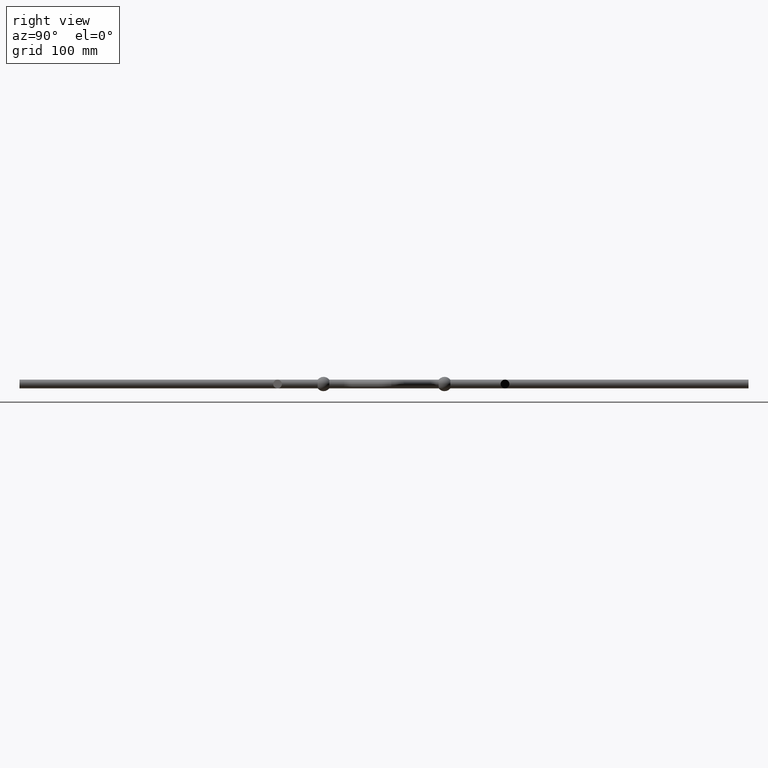
[diagram: clean part render]
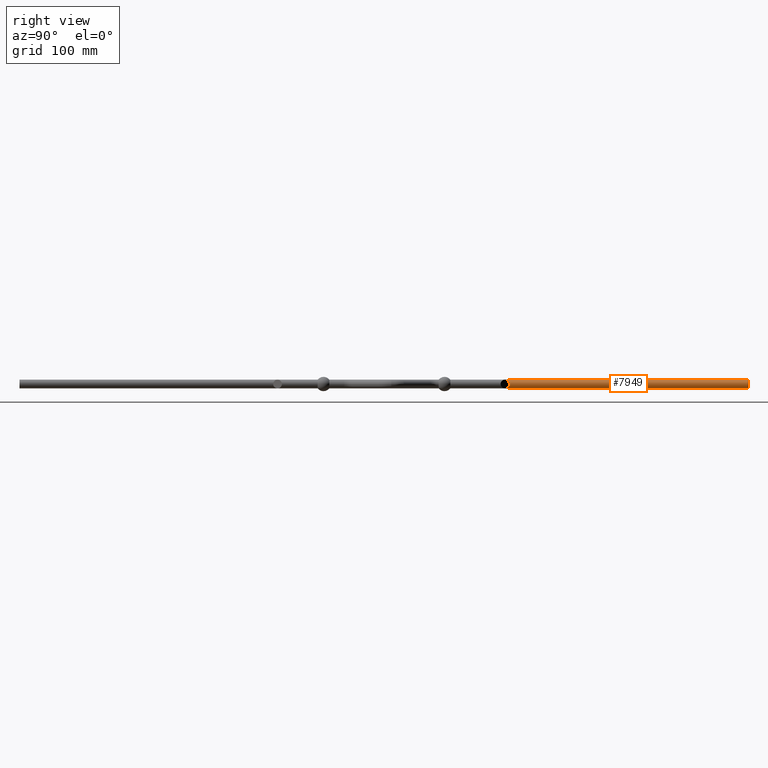
[diagram: same view with one face highlighted and labeled with its STEP entity id]
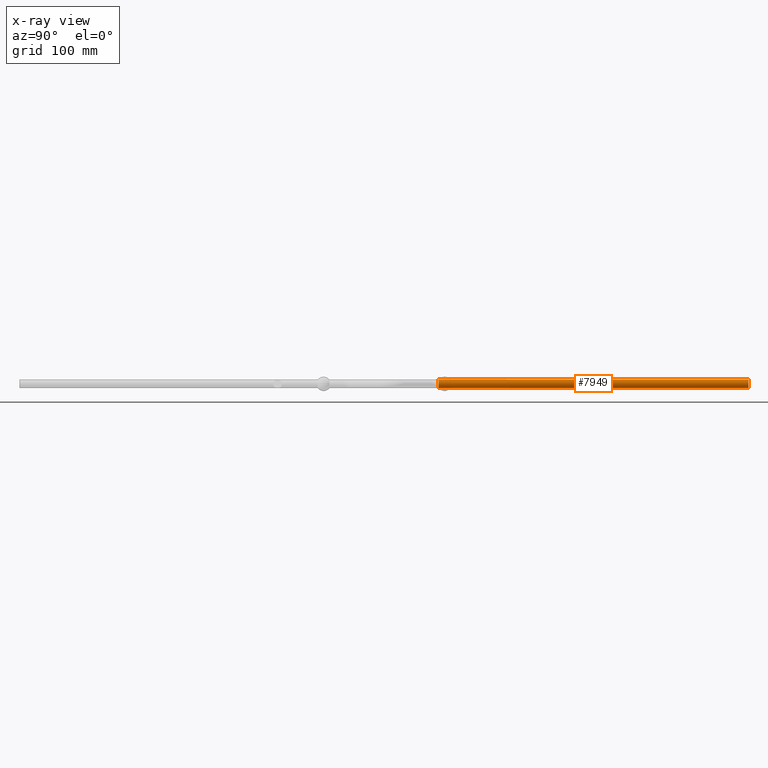
[diagram: x-ray of the same camera — body ghosted, the highlighted face saturated]
A machine part, right view. The second image highlights one B-rep face of the part: STEP entity #7949.
The next image is the same camera in x-ray: the body ghosted, the highlighted face saturated — about 0% of this face is hidden behind the body in this view.
In plain terms, the highlighted cylindrical surface (edge-blend (fillet) strip) has radius 6 mm, axis along (-0, -1, -0).
Its self-contained STEP definition (entity closure, byte-faithful):
#310 = EDGE_CURVE ( 'NONE', #7172, #5032, #6164, .T. ) ;
#415 = CYLINDRICAL_SURFACE ( 'NONE', #4606, 6.000000000000000900 ) ;
#571 = CARTESIAN_POINT ( 'NONE',  ( -5.999999999999999100, 575.0000000000000000, 6.000000000000000900 ) ) ;
#971 = DIRECTION ( 'NONE',  ( 0.0000000000000000000, 1.000000000000000000, 0.0000000000000000000 ) ) ;
#1194 = FACE_OUTER_BOUND ( 'NONE', #4078, .T. ) ;
#1311 = ORIENTED_EDGE ( 'NONE', *, *, #4515, .T. ) ;
#1879 = AXIS2_PLACEMENT_3D ( 'NONE', #3023, #971, #4067 ) ;
#2121 = LINE ( 'NONE', #10593, #10600 ) ;
#2503 = CARTESIAN_POINT ( 'NONE',  ( -5.999999999999999100, 1000.000000000000000, 6.000000000000000900 ) ) ;
#2734 = EDGE_CURVE ( 'NONE', #5369, #12201, #9042, .T. ) ;
#2819 = ORIENTED_EDGE ( 'NONE', *, *, #2734, .T. ) ;
#3023 = CARTESIAN_POINT ( 'NONE',  ( -6.000000000000000000, 575.0000000000000000, 0.0000000000000000000 ) ) ;
#3054 = LINE ( 'NONE', #2503, #4029 ) ;
#3345 = CARTESIAN_POINT ( 'NONE',  ( -6.000000000000000000, 1000.000000000000000, 0.0000000000000000000 ) ) ;
#4029 = VECTOR ( 'NONE', #10629, 1000.000000000000000 ) ;
#4067 = DIRECTION ( 'NONE',  ( 0.0000000000000000000, 0.0000000000000000000, 1.000000000000000000 ) ) ;
#4078 = EDGE_LOOP ( 'NONE', ( #6994, #1311, #2819, #11897 ) ) ;
#4322 = CARTESIAN_POINT ( 'NONE',  ( -6.000000000000000000, 1000.000000000000000, -6.000000000000000900 ) ) ;
#4414 = DIRECTION ( 'NONE',  ( 0.0000000000000000000, 1.000000000000000000, 0.0000000000000000000 ) ) ;
#4514 = DIRECTION ( 'NONE',  ( -0.0000000000000000000, -1.000000000000000000, -0.0000000000000000000 ) ) ;
#4515 = EDGE_CURVE ( 'NONE', #7172, #5369, #3054, .T. ) ;
#4606 = AXIS2_PLACEMENT_3D ( 'NONE', #8469, #8372, #10399 ) ;
#5032 = VERTEX_POINT ( 'NONE', #4322 ) ;
#5091 = EDGE_CURVE ( 'NONE', #5032, #12201, #2121, .T. ) ;
#5369 = VERTEX_POINT ( 'NONE', #571 ) ;
#6025 = CARTESIAN_POINT ( 'NONE',  ( -6.000000000000000000, 575.0000000000000000, -6.000000000000000900 ) ) ;
#6164 = CIRCLE ( 'NONE', #8547, 6.000000000000000900 ) ;
#6994 = ORIENTED_EDGE ( 'NONE', *, *, #310, .F. ) ;
#7172 = VERTEX_POINT ( 'NONE', #12538 ) ;
#7949 = ADVANCED_FACE ( 'NONE', ( #1194 ), #415, .T. ) ;
#8372 = DIRECTION ( 'NONE',  ( -0.0000000000000000000, -1.000000000000000000, -0.0000000000000000000 ) ) ;
#8469 = CARTESIAN_POINT ( 'NONE',  ( -6.000000000000000000, 1000.000000000000000, 0.0000000000000000000 ) ) ;
#8547 = AXIS2_PLACEMENT_3D ( 'NONE', #3345, #4414, #11510 ) ;
#9042 = CIRCLE ( 'NONE', #1879, 6.000000000000000900 ) ;
#10399 = DIRECTION ( 'NONE',  ( 0.0000000000000000000, 0.0000000000000000000, -1.000000000000000000 ) ) ;
#10593 = CARTESIAN_POINT ( 'NONE',  ( -6.000000000000000000, 1000.000000000000000, -6.000000000000000900 ) ) ;
#10600 = VECTOR ( 'NONE', #4514, 1000.000000000000000 ) ;
#10629 = DIRECTION ( 'NONE',  ( -0.0000000000000000000, -1.000000000000000000, -0.0000000000000000000 ) ) ;
#11510 = DIRECTION ( 'NONE',  ( 0.0000000000000000000, 0.0000000000000000000, 1.000000000000000000 ) ) ;
#11897 = ORIENTED_EDGE ( 'NONE', *, *, #5091, .F. ) ;
#12201 = VERTEX_POINT ( 'NONE', #6025 ) ;
#12538 = CARTESIAN_POINT ( 'NONE',  ( -5.999999999999999100, 1000.000000000000000, 6.000000000000000900 ) ) ;